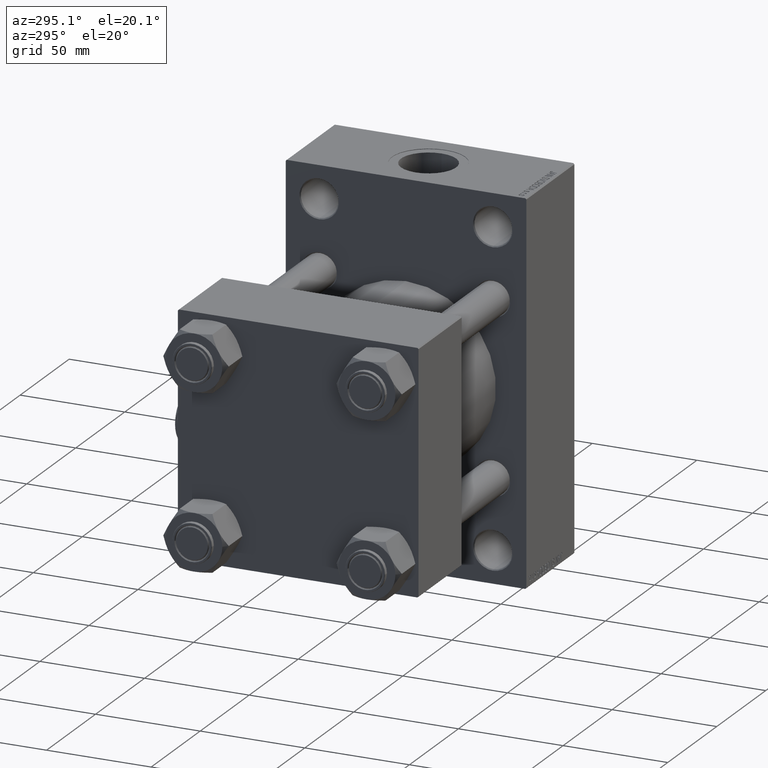
[diagram: clean part render]
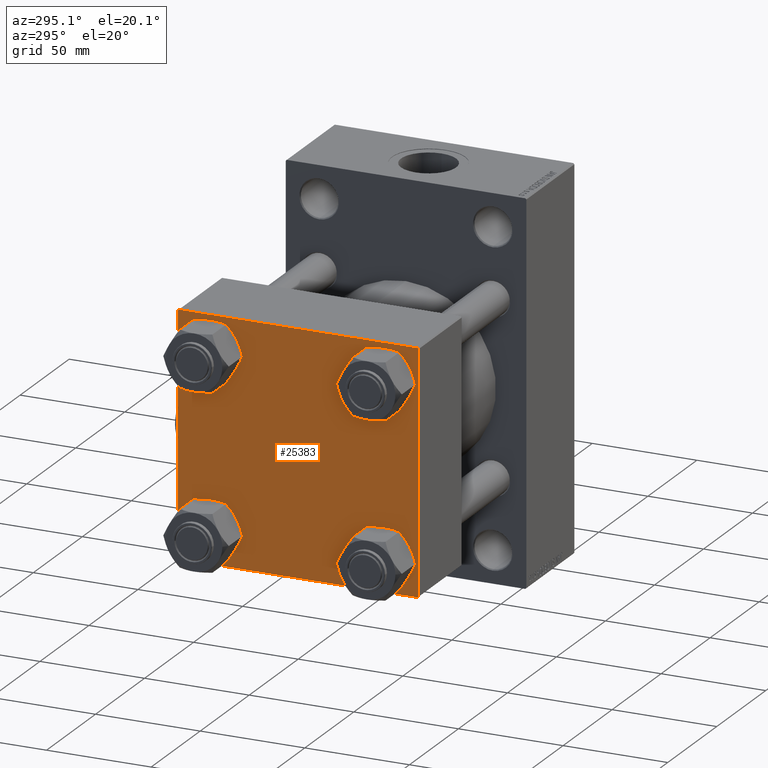
[diagram: same view with one face highlighted and labeled with its STEP entity id]
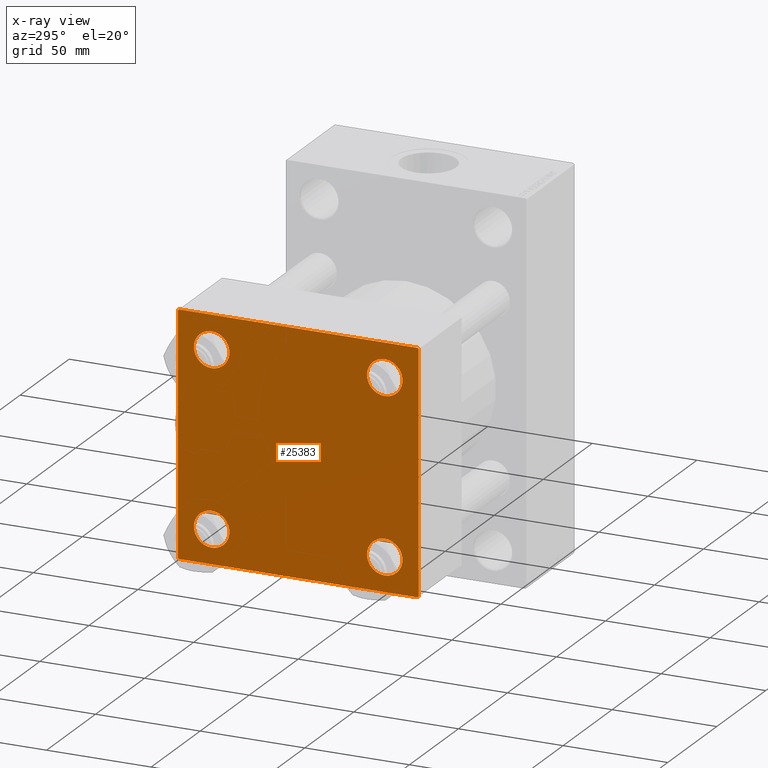
[diagram: x-ray of the same camera — body ghosted, the highlighted face saturated]
A machine part, auxiliary view. The second image highlights one B-rep face of the part: STEP entity #25383.
The next image is the same camera in x-ray: the body ghosted, the highlighted face saturated — about 0% of this face is hidden behind the body in this view.
In plain terms, the highlighted planar face has unit normal (-1, 0, 0).
Its self-contained STEP definition (entity closure, byte-faithful):
#57 = ORIENTED_EDGE ( 'NONE', *, *, #17906, .T. ) ;
#1008 = EDGE_CURVE ( 'NONE', #36300, #3008, #45961, .T. ) ;
#2006 = VERTEX_POINT ( 'NONE', #34794 ) ;
#2275 = DIRECTION ( 'NONE',  ( 1.000000000000000000, -0.000000000000000000, 0.000000000000000000 ) ) ;
#2931 = EDGE_CURVE ( 'NONE', #36024, #30750, #23615, .T. ) ;
#3008 = VERTEX_POINT ( 'NONE', #35763 ) ;
#3473 = DIRECTION ( 'NONE',  ( 1.000000000000000000, -0.000000000000000000, 0.000000000000000000 ) ) ;
#3522 = EDGE_CURVE ( 'NONE', #46887, #2006, #32525, .T. ) ;
#3572 = FACE_BOUND ( 'NONE', #3906, .T. ) ;
#3906 = EDGE_LOOP ( 'NONE', ( #11727, #8013 ) ) ;
#3920 = AXIS2_PLACEMENT_3D ( 'NONE', #10218, #2275, #13681 ) ;
#4631 = CARTESIAN_POINT ( 'NONE',  ( 0.000000000000000000, 41.34999999999999432, 41.35000000000000142 ) ) ;
#4728 = VECTOR ( 'NONE', #19154, 1000.000000000000114 ) ;
#4877 = EDGE_CURVE ( 'NONE', #23659, #33680, #34679, .T. ) ;
#5143 = VERTEX_POINT ( 'NONE', #12669 ) ;
#5993 = EDGE_CURVE ( 'NONE', #36024, #5143, #13287, .T. ) ;
#6023 = DIRECTION ( 'NONE',  ( 0.000000000000000000, 0.000000000000000000, 1.000000000000000000 ) ) ;
#6341 = DIRECTION ( 'NONE',  ( 0.000000000000000000, -1.000000000000000000, -1.206764157201257045E-16 ) ) ;
#7025 = CIRCLE ( 'NONE', #24428, 8.499999999999992895 ) ;
#7307 = CARTESIAN_POINT ( 'NONE',  ( 0.000000000000000000, 57.49999999999999289, 57.50000000000000711 ) ) ;
#7578 = EDGE_CURVE ( 'NONE', #9415, #15285, #10439, .T. ) ;
#7701 = VECTOR ( 'NONE', #22449, 1000.000000000000000 ) ;
#7990 = VECTOR ( 'NONE', #19760, 1000.000000000000114 ) ;
#8013 = ORIENTED_EDGE ( 'NONE', *, *, #19589, .T. ) ;
#8104 = DIRECTION ( 'NONE',  ( 0.000000000000000000, 0.000000000000000000, 1.000000000000000000 ) ) ;
#8164 = AXIS2_PLACEMENT_3D ( 'NONE', #4631, #19024, #8104 ) ;
#8631 = CARTESIAN_POINT ( 'NONE',  ( 0.000000000000000000, -57.50000000000000711, 57.49999999999999289 ) ) ;
#8759 = CARTESIAN_POINT ( 'NONE',  ( 0.000000000000000000, -41.34999999999998721, 41.35000000000000853 ) ) ;
#8944 = CARTESIAN_POINT ( 'NONE',  ( 0.000000000000000000, -57.00000000000000711, -57.50000000000000711 ) ) ;
#9415 = VERTEX_POINT ( 'NONE', #40912 ) ;
#9532 = AXIS2_PLACEMENT_3D ( 'NONE', #22341, #3473, #33762 ) ;
#9533 = EDGE_CURVE ( 'NONE', #37468, #46087, #14488, .T. ) ;
#9862 = EDGE_CURVE ( 'NONE', #28783, #23659, #25439, .T. ) ;
#9872 = CARTESIAN_POINT ( 'NONE',  ( 0.000000000000000000, 41.34999999999999432, 41.35000000000000142 ) ) ;
#10034 = DIRECTION ( 'NONE',  ( -0.000000000000000000, 0.7071067811865376918, 0.7071067811865573427 ) ) ;
#10218 = CARTESIAN_POINT ( 'NONE',  ( 0.000000000000000000, -41.34999999999998721, 41.35000000000000853 ) ) ;
#10439 = CIRCLE ( 'NONE', #35053, 8.499999999999992895 ) ;
#11205 = VECTOR ( 'NONE', #43115, 1000.000000000000000 ) ;
#11508 = ORIENTED_EDGE ( 'NONE', *, *, #15820, .T. ) ;
#11727 = ORIENTED_EDGE ( 'NONE', *, *, #9533, .T. ) ;
#12669 = CARTESIAN_POINT ( 'NONE',  ( 0.000000000000000000, -57.00000000000003553, 57.49999999999999289 ) ) ;
#13287 = LINE ( 'NONE', #24471, #11205 ) ;
#13681 = DIRECTION ( 'NONE',  ( 0.000000000000000000, 0.000000000000000000, 1.000000000000000000 ) ) ;
#13853 = DIRECTION ( 'NONE',  ( 1.000000000000000000, -0.000000000000000000, 0.000000000000000000 ) ) ;
#13974 = DIRECTION ( 'NONE',  ( -1.000000000000000000, 0.000000000000000000, -0.000000000000000000 ) ) ;
#14201 = CARTESIAN_POINT ( 'NONE',  ( 0.000000000000000000, 57.49999999999999289, -57.00000000000000711 ) ) ;
#14488 = CIRCLE ( 'NONE', #8164, 8.499999999999992895 ) ;
#14714 = CARTESIAN_POINT ( 'NONE',  ( 0.000000000000000000, 41.34999999999999432, 49.85000000000000142 ) ) ;
#15027 = CARTESIAN_POINT ( 'NONE',  ( 0.000000000000000000, 57.00000000000002132, -57.49999999999999289 ) ) ;
#15060 = CARTESIAN_POINT ( 'NONE',  ( 0.000000000000000000, -57.25000000000000711, -57.25000000000000711 ) ) ;
#15214 = DIRECTION ( 'NONE',  ( 0.000000000000000000, 0.000000000000000000, 1.000000000000000000 ) ) ;
#15285 = VERTEX_POINT ( 'NONE', #32001 ) ;
#15820 = EDGE_CURVE ( 'NONE', #26153, #5143, #44070, .T. ) ;
#16543 = DIRECTION ( 'NONE',  ( 0.000000000000000000, 0.000000000000000000, -1.000000000000000000 ) ) ;
#16950 = DIRECTION ( 'NONE',  ( 1.000000000000000000, -0.000000000000000000, 0.000000000000000000 ) ) ;
#17568 = DIRECTION ( 'NONE',  ( 0.000000000000000000, 0.000000000000000000, 1.000000000000000000 ) ) ;
#17906 = EDGE_CURVE ( 'NONE', #2006, #46887, #18461, .T. ) ;
#18461 = CIRCLE ( 'NONE', #44653, 8.499999999999992895 ) ;
#18721 = CARTESIAN_POINT ( 'NONE',  ( 0.000000000000000000, 57.49999999999999289, 57.00000000000003553 ) ) ;
#19024 = DIRECTION ( 'NONE',  ( 1.000000000000000000, -0.000000000000000000, 0.000000000000000000 ) ) ;
#19154 = DIRECTION ( 'NONE',  ( 0.000000000000000000, 0.7071067811865573427, -0.7071067811865376918 ) ) ;
#19194 = DIRECTION ( 'NONE',  ( 1.000000000000000000, -0.000000000000000000, 0.000000000000000000 ) ) ;
#19589 = EDGE_CURVE ( 'NONE', #46087, #37468, #38402, .T. ) ;
#19731 = CARTESIAN_POINT ( 'NONE',  ( 0.000000000000000000, -57.50000000000000711, -57.00000000000000711 ) ) ;
#19760 = DIRECTION ( 'NONE',  ( 0.000000000000000000, -0.7071067811865474617, 0.7071067811865474617 ) ) ;
#21389 = ORIENTED_EDGE ( 'NONE', *, *, #3522, .T. ) ;
#22341 = CARTESIAN_POINT ( 'NONE',  ( 0.000000000000000000, -41.34999999999998721, -41.35000000000000853 ) ) ;
#22449 = DIRECTION ( 'NONE',  ( 0.000000000000000000, 0.000000000000000000, -1.000000000000000000 ) ) ;
#22956 = ORIENTED_EDGE ( 'NONE', *, *, #9862, .T. ) ;
#23292 = VECTOR ( 'NONE', #10034, 1000.000000000000114 ) ;
#23615 = LINE ( 'NONE', #42004, #4728 ) ;
#23659 = VERTEX_POINT ( 'NONE', #8944 ) ;
#24428 = AXIS2_PLACEMENT_3D ( 'NONE', #48673, #13853, #17568 ) ;
#24471 = CARTESIAN_POINT ( 'NONE',  ( 0.000000000000000000, 57.49999999999999289, 57.50000000000000711 ) ) ;
#25005 = DIRECTION ( 'NONE',  ( 0.000000000000000000, 0.000000000000000000, 1.000000000000000000 ) ) ;
#25274 = EDGE_LOOP ( 'NONE', ( #21389, #57 ) ) ;
#25383 = ADVANCED_FACE ( 'NONE', ( #28404, #36581, #48041, #3572, #45298 ), #30133, .T. ) ;
#25439 = LINE ( 'NONE', #40102, #30387 ) ;
#25731 = CARTESIAN_POINT ( 'NONE',  ( 0.000000000000000000, -57.50000000000000711, 57.00000000000000711 ) ) ;
#25742 = ORIENTED_EDGE ( 'NONE', *, *, #7578, .T. ) ;
#25828 = EDGE_LOOP ( 'NONE', ( #25742, #36559 ) ) ;
#25911 = CARTESIAN_POINT ( 'NONE',  ( 0.000000000000000000, 0.000000000000000000, 0.000000000000000000 ) ) ;
#26101 = EDGE_CURVE ( 'NONE', #33937, #28783, #26468, .T. ) ;
#26115 = ORIENTED_EDGE ( 'NONE', *, *, #30023, .T. ) ;
#26153 = VERTEX_POINT ( 'NONE', #25731 ) ;
#26332 = ORIENTED_EDGE ( 'NONE', *, *, #26101, .T. ) ;
#26468 = LINE ( 'NONE', #33173, #34492 ) ;
#26484 = AXIS2_PLACEMENT_3D ( 'NONE', #9872, #47154, #25005 ) ;
#28105 = CARTESIAN_POINT ( 'NONE',  ( 0.000000000000000000, 57.00000000000000711, 57.50000000000000711 ) ) ;
#28404 = FACE_BOUND ( 'NONE', #30012, .T. ) ;
#28783 = VERTEX_POINT ( 'NONE', #15027 ) ;
#29142 = DIRECTION ( 'NONE',  ( -0.000000000000000000, 0.000000000000000000, 1.000000000000000000 ) ) ;
#29397 = CARTESIAN_POINT ( 'NONE',  ( -0.000000000000000000, -57.25000000000081712, 57.24999999999922551 ) ) ;
#29585 = EDGE_CURVE ( 'NONE', #26153, #33680, #31706, .T. ) ;
#30012 = EDGE_LOOP ( 'NONE', ( #36310, #32083 ) ) ;
#30023 = EDGE_CURVE ( 'NONE', #30750, #33937, #41324, .T. ) ;
#30133 = PLANE ( 'NONE',  #43994 ) ;
#30299 = ORIENTED_EDGE ( 'NONE', *, *, #2931, .T. ) ;
#30387 = VECTOR ( 'NONE', #6341, 1000.000000000000000 ) ;
#30750 = VERTEX_POINT ( 'NONE', #18721 ) ;
#31706 = LINE ( 'NONE', #8631, #44139 ) ;
#32001 = CARTESIAN_POINT ( 'NONE',  ( 0.000000000000000000, 41.34999999999999432, -49.85000000000000142 ) ) ;
#32083 = ORIENTED_EDGE ( 'NONE', *, *, #1008, .T. ) ;
#32319 = DIRECTION ( 'NONE',  ( 1.000000000000000000, -0.000000000000000000, 0.000000000000000000 ) ) ;
#32525 = CIRCLE ( 'NONE', #9532, 8.499999999999992895 ) ;
#33173 = CARTESIAN_POINT ( 'NONE',  ( 0.000000000000000000, 57.25000000000081712, -57.24999999999922551 ) ) ;
#33237 = ORIENTED_EDGE ( 'NONE', *, *, #5993, .F. ) ;
#33308 = EDGE_CURVE ( 'NONE', #15285, #9415, #7025, .T. ) ;
#33680 = VERTEX_POINT ( 'NONE', #19731 ) ;
#33762 = DIRECTION ( 'NONE',  ( 0.000000000000000000, 0.000000000000000000, 1.000000000000000000 ) ) ;
#33937 = VERTEX_POINT ( 'NONE', #14201 ) ;
#34167 = CARTESIAN_POINT ( 'NONE',  ( 0.000000000000000000, 41.34999999999999432, 32.85000000000000853 ) ) ;
#34488 = EDGE_LOOP ( 'NONE', ( #26115, #26332, #22956, #48574, #45324, #11508, #33237, #30299 ) ) ;
#34492 = VECTOR ( 'NONE', #37158, 1000.000000000000114 ) ;
#34679 = LINE ( 'NONE', #15060, #7990 ) ;
#34794 = CARTESIAN_POINT ( 'NONE',  ( 0.000000000000000000, -41.34999999999998721, -49.85000000000000853 ) ) ;
#35053 = AXIS2_PLACEMENT_3D ( 'NONE', #47777, #16950, #39815 ) ;
#35763 = CARTESIAN_POINT ( 'NONE',  ( 0.000000000000000000, -41.34999999999998721, 49.85000000000000853 ) ) ;
#36024 = VERTEX_POINT ( 'NONE', #28105 ) ;
#36300 = VERTEX_POINT ( 'NONE', #39412 ) ;
#36310 = ORIENTED_EDGE ( 'NONE', *, *, #44576, .T. ) ;
#36559 = ORIENTED_EDGE ( 'NONE', *, *, #33308, .T. ) ;
#36581 = FACE_BOUND ( 'NONE', #25274, .T. ) ;
#37158 = DIRECTION ( 'NONE',  ( -0.000000000000000000, -0.7071067811865376918, -0.7071067811865573427 ) ) ;
#37468 = VERTEX_POINT ( 'NONE', #14714 ) ;
#37846 = CARTESIAN_POINT ( 'NONE',  ( 0.000000000000000000, -41.34999999999998721, -41.35000000000000853 ) ) ;
#38402 = CIRCLE ( 'NONE', #26484, 8.499999999999992895 ) ;
#39412 = CARTESIAN_POINT ( 'NONE',  ( 0.000000000000000000, -41.34999999999998721, 32.85000000000001563 ) ) ;
#39815 = DIRECTION ( 'NONE',  ( 0.000000000000000000, 0.000000000000000000, 1.000000000000000000 ) ) ;
#40102 = CARTESIAN_POINT ( 'NONE',  ( 0.000000000000000000, 57.49999999999999289, -57.49999999999999289 ) ) ;
#40912 = CARTESIAN_POINT ( 'NONE',  ( 0.000000000000000000, 41.34999999999999432, -32.85000000000000853 ) ) ;
#41324 = LINE ( 'NONE', #7307, #7701 ) ;
#41413 = CIRCLE ( 'NONE', #43775, 8.499999999999992895 ) ;
#42004 = CARTESIAN_POINT ( 'NONE',  ( 0.000000000000000000, 57.24999999999922551, 57.25000000000081712 ) ) ;
#43115 = DIRECTION ( 'NONE',  ( 0.000000000000000000, -1.000000000000000000, -1.206764157201257045E-16 ) ) ;
#43775 = AXIS2_PLACEMENT_3D ( 'NONE', #8759, #32319, #6023 ) ;
#43994 = AXIS2_PLACEMENT_3D ( 'NONE', #25911, #13974, #29142 ) ;
#44070 = LINE ( 'NONE', #29397, #23292 ) ;
#44139 = VECTOR ( 'NONE', #16543, 1000.000000000000000 ) ;
#44576 = EDGE_CURVE ( 'NONE', #3008, #36300, #41413, .T. ) ;
#44653 = AXIS2_PLACEMENT_3D ( 'NONE', #37846, #19194, #15214 ) ;
#45298 = FACE_OUTER_BOUND ( 'NONE', #34488, .T. ) ;
#45324 = ORIENTED_EDGE ( 'NONE', *, *, #29585, .F. ) ;
#45961 = CIRCLE ( 'NONE', #3920, 8.499999999999992895 ) ;
#46087 = VERTEX_POINT ( 'NONE', #34167 ) ;
#46471 = CARTESIAN_POINT ( 'NONE',  ( 0.000000000000000000, -41.34999999999998721, -32.85000000000001563 ) ) ;
#46887 = VERTEX_POINT ( 'NONE', #46471 ) ;
#47154 = DIRECTION ( 'NONE',  ( 1.000000000000000000, -0.000000000000000000, 0.000000000000000000 ) ) ;
#47777 = CARTESIAN_POINT ( 'NONE',  ( 0.000000000000000000, 41.34999999999999432, -41.35000000000000142 ) ) ;
#48041 = FACE_BOUND ( 'NONE', #25828, .T. ) ;
#48574 = ORIENTED_EDGE ( 'NONE', *, *, #4877, .T. ) ;
#48673 = CARTESIAN_POINT ( 'NONE',  ( 0.000000000000000000, 41.34999999999999432, -41.35000000000000142 ) ) ;